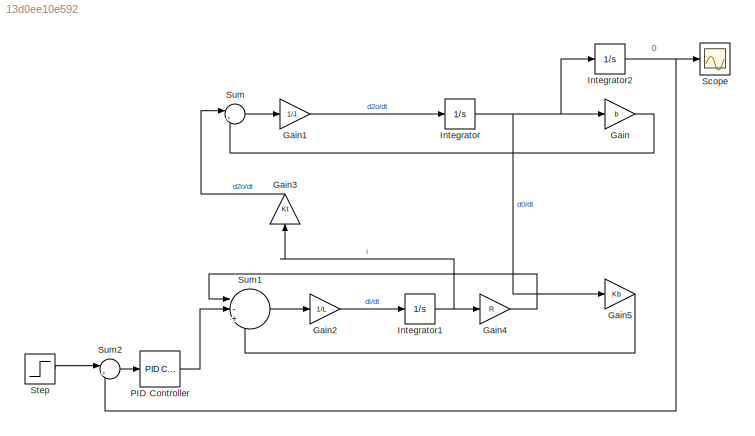
MODEL slx_13d0ee10e592
KIND model
CONFIG AbsTol = auto
CONFIG EnableMultiTasking = off
CONFIG FixedStep = auto
CONFIG MaxStep = auto
CONFIG MinStep = auto
CONFIG RelTol = 1e-3
CONFIG SampleTimeConstraint = Unconstrained
CONFIG SolverName = VariableStepAuto
CONFIG StartTime = 0.0
CONFIG StopTime = 3
BLOCK [Gain] Gain
  Gain = b
BLOCK [Gain] Gain1
  Gain = 1/J
BLOCK [Gain] Gain2
  Gain = 1/L
BLOCK [Gain] Gain3
  Gain = Kt
  NameLocation = right
BLOCK [Gain] Gain4
  Gain = R
BLOCK [Gain] Gain5
  Gain = Kb
BLOCK [Integrator] Integrator
BLOCK [Integrator] Integrator1
BLOCK [Integrator] Integrator2
BLOCK [Reference] PID Controller  REF=slpidlib/PID Controller
  LibrarySourceBlock = simulink/Continuous/PID Controller
  SourceBlock = slpidlib/PID Controller
  SourceType = PID 1dof
BLOCK [Scope] Scope
  Floating = off
  NumInputPorts = 1
  ScopeSpecificationString = Simulink.scopes.TimeScopeBlockCfg('CurrentConfiguration', extmgr.ConfigurationSet(extmgr.Configuration('Core','General UI',true),extmgr.Configuration('Core','Source UI',true),extmgr.Configuration('Sources','WiredSimulink',true,'DataLoggingLimitDataPoints',true,'DataLoggingMaxPoints','50000000'),extmgr.Configuration('Visuals','Time Domain',true,'SerializedDisplays',{struct('MinYLimReal','-44.70786'...<+1517ch>
BLOCK [Step] Step
  After = V
  SampleTime = 0
BLOCK [Sum] Sum
  Inputs = |+-
BLOCK [Sum] Sum1
  Inputs = |-+-
BLOCK [Sum] Sum2
  Inputs = |+-
ANNOTATION (root): 0
LINE Gain1:1 -> Integrator:1
LINE Gain2:1 -> Integrator1:1
LINE Gain3:1 -> Sum:1
LINE Gain4:1 -> Sum1:1
LINE Gain5:1 -> Sum1:3
LINE Gain:1 -> Sum:2
NET Integrator1:1 -> Gain3:1, Gain4:1
NET Integrator2:1 -> Scope:1, Sum2:2
NET Integrator:1 -> Gain5:1, Gain:1, Integrator2:1
LINE PID Controller:1 -> Sum1:2
LINE Step:1 -> Sum2:1
LINE Sum1:1 -> Gain2:1
LINE Sum2:1 -> PID Controller:1
LINE Sum:1 -> Gain1:1
note: NET lines group one-source signal fan-out (src -> all destinations, sorted); 1:1 wires keep LINE
